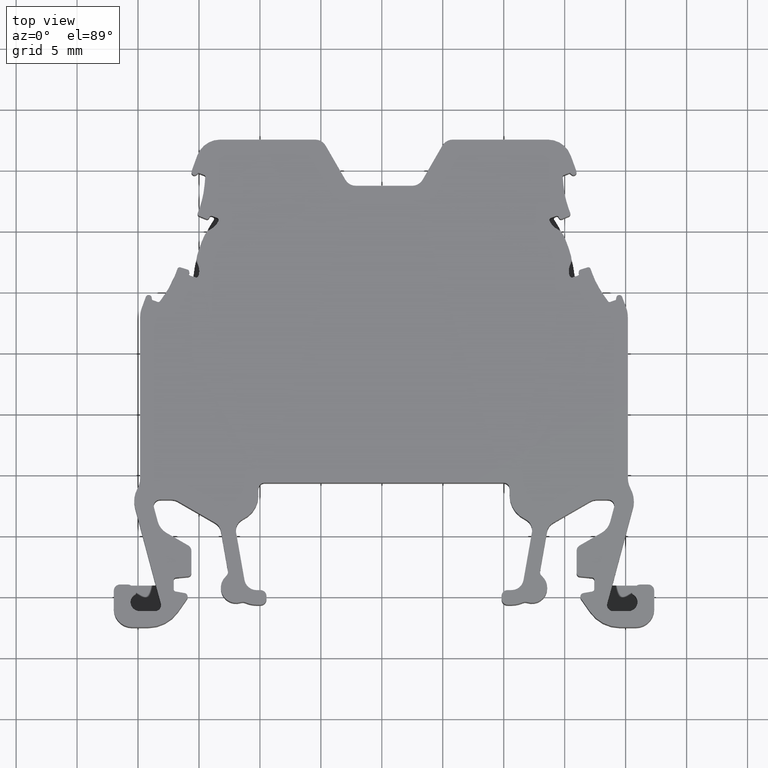
[diagram: clean part render]
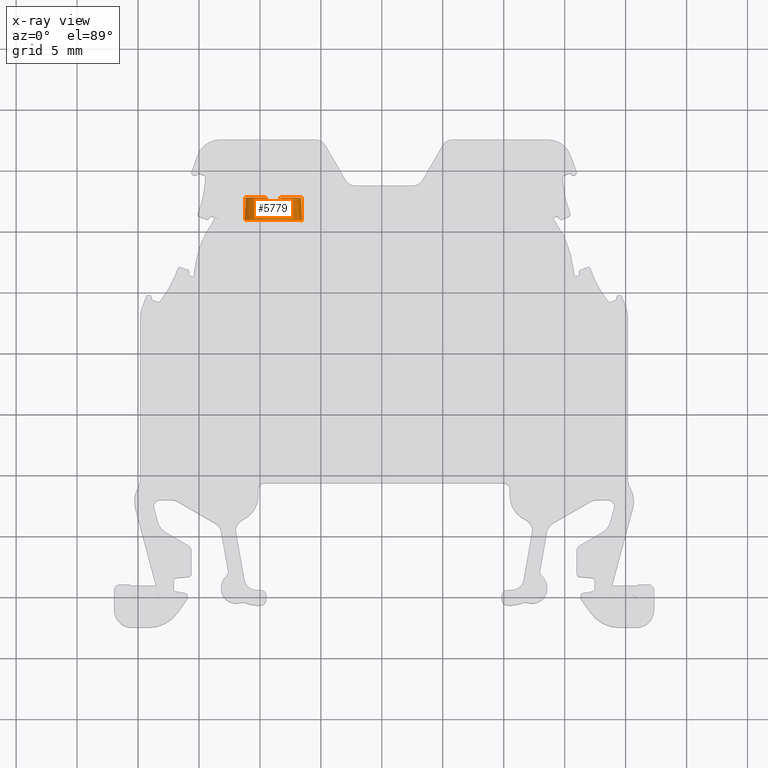
[diagram: x-ray — body ghosted, one internal face saturated and labeled with its STEP entity id]
A machine part, top view, then the same camera in x-ray: the body is ghosted and one INTERNAL B-rep face — a face not visible from any outside direction — is saturated and labeled: STEP entity #5779.
In plain terms, the highlighted conical surface has half-angle 2 deg.
Its self-contained STEP definition (entity closure, byte-faithful):
#1660 = VECTOR ( 'NONE', #5285, 1000.000000000000000 ) ;
#1661 = AXIS2_PLACEMENT_3D ( 'NONE', #4579, #4587, #4640 ) ;
#1670 = CIRCLE ( 'NONE', #1696, 2.283382567572767000 ) ;
#1673 = VECTOR ( 'NONE', #5113, 1000.000000000000000 ) ;
#1677 = CIRCLE ( 'NONE', #1661, 2.283382567572767000 ) ;
#1696 = AXIS2_PLACEMENT_3D ( 'NONE', #5088, #5079, #5049 ) ;
#1918 = AXIS2_PLACEMENT_3D ( 'NONE', #11092, #11072, #11088 ) ;
#1926 = CONICAL_SURFACE ( 'NONE', #1918, 2.348414834230760900, 0.03490658503991801700 ) ;
#2078 = B_SPLINE_CURVE_WITH_KNOTS ( 'NONE', 3,
 ( #5134, #5175, #5192, #5201 ),
 .UNSPECIFIED., .F., .F.,
 ( 4, 4 ),
 ( 0.0000000000000000000, 1.000000000000000000 ),
 .UNSPECIFIED. ) ;
#2080 = B_SPLINE_CURVE_WITH_KNOTS ( 'NONE', 3,
 ( #5286, #5265, #5273, #5233, #5268, #5272, #5269, #5276, #5266, #5259, #5237, #5274, #5262, #5257, #5252, #5267, #5275, #5255, #5250, #5277 ),
 .UNSPECIFIED., .F., .F.,
 ( 4, 1, 1, 1, 2, 2, 2, 1, 1, 1, 2, 2, 4 ),
 ( 0.0000000000000000000, 0.1250000000003731500, 0.1875000000005596900, 0.2187500000006529500, 0.2343750000006995200, 0.2500000000007461300, 0.5000000000006935600, 0.6250000000006673600, 0.6875000000006061800, 0.7187500000005756500, 0.7343750000005245800, 0.7500000000004735100, 1.000000000000000000 ),
 .UNSPECIFIED. ) ;
#2116 = B_SPLINE_CURVE_WITH_KNOTS ( 'NONE', 3,
 ( #9333, #9365, #9368, #9344 ),
 .UNSPECIFIED., .F., .F.,
 ( 4, 4 ),
 ( 0.0000000000000000000, 1.000000000000000000 ),
 .UNSPECIFIED. ) ;
#2147 = B_SPLINE_CURVE_WITH_KNOTS ( 'NONE', 3,
 ( #5634, #5642, #5643, #5604 ),
 .UNSPECIFIED., .F., .F.,
 ( 4, 4 ),
 ( 0.0000000000000000000, 1.000000000000000000 ),
 .UNSPECIFIED. ) ;
#2175 = B_SPLINE_CURVE_WITH_KNOTS ( 'NONE', 3,
 ( #5382, #5370, #5354, #5373, #5355, #5362, #5347, #5372, #5374, #5383, #5377, #5386, #5363, #5375, #5339, #5365, #5376, #5367, #5378, #5366 ),
 .UNSPECIFIED., .F., .F.,
 ( 4, 1, 1, 1, 2, 2, 2, 1, 1, 1, 2, 2, 4 ),
 ( 0.0000000000000000000, 0.1250000000001736100, 0.1875000000002603800, 0.2187500000003038100, 0.2343750000003558500, 0.2500000000004079000, 0.5000000000007981400, 0.6250000000009327000, 0.6875000000009999800, 0.7187500000011107800, 0.7343750000010875700, 0.7500000000010644800, 1.000000000000000000 ),
 .UNSPECIFIED. ) ;
#2190 = B_SPLINE_CURVE_WITH_KNOTS ( 'NONE', 3,
 ( #5520, #5542, #5515, #5517 ),
 .UNSPECIFIED., .F., .F.,
 ( 4, 4 ),
 ( 0.0000000000000000000, 1.000000000000000000 ),
 .UNSPECIFIED. ) ;
#3680 = ORIENTED_EDGE ( 'NONE', *, *, #6441, .T. ) ;
#3694 = ORIENTED_EDGE ( 'NONE', *, *, #6340, .T. ) ;
#3696 = ORIENTED_EDGE ( 'NONE', *, *, #6382, .F. ) ;
#3732 = ORIENTED_EDGE ( 'NONE', *, *, #6429, .T. ) ;
#3734 = ORIENTED_EDGE ( 'NONE', *, *, #6360, .T. ) ;
#3735 = ORIENTED_EDGE ( 'NONE', *, *, #6235, .T. ) ;
#3738 = ORIENTED_EDGE ( 'NONE', *, *, #6376, .T. ) ;
#3782 = ORIENTED_EDGE ( 'NONE', *, *, #6384, .F. ) ;
#3788 = ORIENTED_EDGE ( 'NONE', *, *, #6404, .F. ) ;
#3790 = ORIENTED_EDGE ( 'NONE', *, *, #6370, .T. ) ;
#4579 = CARTESIAN_POINT ( 'NONE',  ( 1451.103378640880000, 952.7469568751598700, 0.0000000000000000000 ) ) ;
#4587 = DIRECTION ( 'NONE',  ( -2.363771103056163500E-014, -1.000000000000000000, 0.0000000000000000000 ) ) ;
#4640 = DIRECTION ( 'NONE',  ( 1.000000000000000000, 0.0000000000000000000, 0.0000000000000000000 ) ) ;
#5024 = CARTESIAN_POINT ( 'NONE',  ( 1448.754963806649400, 950.8846764156262500, 2.875978709810863600E-016 ) ) ;
#5049 = DIRECTION ( 'NONE',  ( 1.000000000000000000, 0.0000000000000000000, 0.0000000000000000000 ) ) ;
#5070 = LINE ( 'NONE', #5024, #1673 ) ;
#5079 = DIRECTION ( 'NONE',  ( -2.363771103056163500E-014, -1.000000000000000000, 0.0000000000000000000 ) ) ;
#5088 = CARTESIAN_POINT ( 'NONE',  ( 1451.103378640880000, 952.7469568751598700, 0.0000000000000000000 ) ) ;
#5113 = DIRECTION ( 'NONE',  ( -0.03489949670257962800, -0.9993908270190929900, 4.273955692860989000E-018 ) ) ;
#5117 = LINE ( 'NONE', #5278, #1660 ) ;
#5134 = CARTESIAN_POINT ( 'NONE',  ( 1451.103378640880000, 951.8342832071922400, 2.315253834354456900 ) ) ;
#5175 = CARTESIAN_POINT ( 'NONE',  ( 1450.901069512176300, 951.8342832072335100, 2.315253834353207600 ) ) ;
#5192 = CARTESIAN_POINT ( 'NONE',  ( 1450.698776254143000, 951.8342832072335100, 2.288586072161315200 ) ) ;
#5201 = CARTESIAN_POINT ( 'NONE',  ( 1450.503378640880300, 951.8342832071897400, 2.236157489421518800 ) ) ;
#5233 = CARTESIAN_POINT ( 'NONE',  ( 1450.483967563870200, 950.8846764156270400, 2.267518399551567300 ) ) ;
#5237 = CARTESIAN_POINT ( 'NONE',  ( 1449.328359667386800, 950.8846764156272700, 1.546241177424305700 ) ) ;
#5250 = CARTESIAN_POINT ( 'NONE',  ( 1448.755157413459300, 950.8846764156271500, 0.2994956009054164900 ) ) ;
#5252 = CARTESIAN_POINT ( 'NONE',  ( 1448.950854296915600, 950.8846764156273800, 0.9392429537708882900 ) ) ;
#5255 = CARTESIAN_POINT ( 'NONE',  ( 1448.810119478566800, 950.8846764156273800, 0.5876419596838162700 ) ) ;
#5257 = CARTESIAN_POINT ( 'NONE',  ( 1448.975226458079300, 950.8846764156272700, 0.9945931723787427800 ) ) ;
#5259 = CARTESIAN_POINT ( 'NONE',  ( 1449.671676424888800, 950.8846764156269300, 1.889257808117193100 ) ) ;
#5262 = CARTESIAN_POINT ( 'NONE',  ( 1449.036570593943700, 950.8846764156271500, 1.120732924587791500 ) ) ;
#5265 = CARTESIAN_POINT ( 'NONE',  ( 1450.953895888460000, 950.8846764156271500, 2.348284623523447600 ) ) ;
#5266 = CARTESIAN_POINT ( 'NONE',  ( 1449.938018970699200, 950.8846764156268100, 2.064535381624629900 ) ) ;
#5267 = CARTESIAN_POINT ( 'NONE',  ( 1448.935032452312700, 950.8846764156270400, 0.9020560691870315200 ) ) ;
#5268 = CARTESIAN_POINT ( 'NONE',  ( 1450.360861892154600, 950.8846764156272700, 2.228515015369529500 ) ) ;
#5269 = CARTESIAN_POINT ( 'NONE',  ( 1450.273647728417900, 950.8846764156269300, 2.197022924212926200 ) ) ;
#5272 = CARTESIAN_POINT ( 'NONE',  ( 1450.308482679165800, 950.8846764156272700, 2.209876174630384800 ) ) ;
#5273 = CARTESIAN_POINT ( 'NONE',  ( 1450.733728939602800, 950.8846764156269300, 2.327576191078450500 ) ) ;
#5274 = CARTESIAN_POINT ( 'NONE',  ( 1449.177161904937700, 950.8846764156269300, 1.360969397502788800 ) ) ;
#5275 = CARTESIAN_POINT ( 'NONE',  ( 1448.926708159681500, 950.8846764156269300, 0.8817388961259133900 ) ) ;
#5276 = CARTESIAN_POINT ( 'NONE',  ( 1450.257747101653600, 950.8846764156271500, 2.190965717488663000 ) ) ;
#5277 = CARTESIAN_POINT ( 'NONE',  ( 1448.754963806649800, 950.8846764156378400, 1.433421229859897800E-016 ) ) ;
#5278 = CARTESIAN_POINT ( 'NONE',  ( 1453.451793475110700, 950.8846764156260200, 0.0000000000000000000 ) ) ;
#5285 = DIRECTION ( 'NONE',  ( 0.03489949670248513500, -0.9993908270190963200, 0.0000000000000000000 ) ) ;
#5286 = CARTESIAN_POINT ( 'NONE',  ( 1451.103378640880000, 950.8846764156406800, 2.348414834229821200 ) ) ;
#5339 = CARTESIAN_POINT ( 'NONE',  ( 1452.042621577941200, 950.8846764156273800, 2.152524349219004000 ) ) ;
#5347 = CARTESIAN_POINT ( 'NONE',  ( 1453.300426033858500, 950.8846764156271500, 0.8296690438414263700 ) ) ;
#5354 = CARTESIAN_POINT ( 'NONE',  ( 1453.431131638514700, 950.8846764156268100, 0.3692026506247691500 ) ) ;
#5355 = CARTESIAN_POINT ( 'NONE',  ( 1453.331971009119300, 950.8846764156272700, 0.7423211640626987700 ) ) ;
#5362 = CARTESIAN_POINT ( 'NONE',  ( 1453.313301385095400, 950.8846764156270400, 0.7947782117628720000 ) ) ;
#5363 = CARTESIAN_POINT ( 'NONE',  ( 1452.224111517888800, 950.8846764156271500, 2.066808061897198900 ) ) ;
#5365 = CARTESIAN_POINT ( 'NONE',  ( 1452.005434701287000, 950.8846764156267000, 2.168346191328387000 ) ) ;
#5366 = CARTESIAN_POINT ( 'NONE',  ( 1451.103378640880000, 950.8846764156406800, 2.348414834229821200 ) ) ;
#5367 = CARTESIAN_POINT ( 'NONE',  ( 1451.691190149494100, 950.8846764156271500, 2.293191953571414500 ) ) ;
#5370 = CARTESIAN_POINT ( 'NONE',  ( 1453.451764296722300, 950.8846764156271500, 0.1492272949043248800 ) ) ;
#5372 = CARTESIAN_POINT ( 'NONE',  ( 1453.294344364124500, 950.8846764156270400, 0.8456315303392829600 ) ) ;
#5373 = CARTESIAN_POINT ( 'NONE',  ( 1453.371029645349200, 950.8846764156270400, 0.6190757890188787200 ) ) ;
#5374 = CARTESIAN_POINT ( 'NONE',  ( 1453.167913930430800, 950.8846764156269300, 1.165359812310742500 ) ) ;
#5375 = CARTESIAN_POINT ( 'NONE',  ( 1452.097971785504600, 950.8846764156269300, 2.128152191528276800 ) ) ;
#5376 = CARTESIAN_POINT ( 'NONE',  ( 1451.985106940197500, 950.8846764156271500, 2.176674681744899900 ) ) ;
#5377 = CARTESIAN_POINT ( 'NONE',  ( 1452.649619782054500, 950.8846764156272700, 1.775018984892156900 ) ) ;
#5378 = CARTESIAN_POINT ( 'NONE',  ( 1451.403043790715400, 950.8846764156270400, 2.348154018677650200 ) ) ;
#5382 = CARTESIAN_POINT ( 'NONE',  ( 1453.451793475110200, 950.8846764156491000, -2.300782967848990600E-016 ) ) ;
#5383 = CARTESIAN_POINT ( 'NONE',  ( 1452.992636521498800, 950.8846764156269300, 1.431702193194004600 ) ) ;
#5386 = CARTESIAN_POINT ( 'NONE',  ( 1452.464347974945200, 950.8846764156271500, 1.926216755889826900 ) ) ;
#5515 = CARTESIAN_POINT ( 'NONE',  ( 1451.703418479764700, 952.1385077631771300, 2.225147265713771200 ) ) ;
#5517 = CARTESIAN_POINT ( 'NONE',  ( 1451.703378640879700, 951.8342832071784900, 2.236157489422031300 ) ) ;
#5520 = CARTESIAN_POINT ( 'NONE',  ( 1451.703378640879900, 952.7469568751708900, 2.203142289980455400 ) ) ;
#5542 = CARTESIAN_POINT ( 'NONE',  ( 1451.703418466789600, 952.4427323191754300, 2.214142125483318200 ) ) ;
#5604 = CARTESIAN_POINT ( 'NONE',  ( 1451.103378640880000, 951.8342832071922400, 2.315253834354456900 ) ) ;
#5634 = CARTESIAN_POINT ( 'NONE',  ( 1451.703378640879700, 951.8342832071784900, 2.236157489422031300 ) ) ;
#5642 = CARTESIAN_POINT ( 'NONE',  ( 1451.507981027617200, 951.8342832071766700, 2.288586072163294000 ) ) ;
#5643 = CARTESIAN_POINT ( 'NONE',  ( 1451.305687769584000, 951.8342832071766700, 2.315253834355199400 ) ) ;
#5779 = ADVANCED_FACE ( 'NONE', ( #11078 ), #1926, .T. ) ;
#6235 = EDGE_CURVE ( 'NONE', #10766, #10753, #2116, .T. ) ;
#6340 = EDGE_CURVE ( 'NONE', #10753, #10746, #1677, .T. ) ;
#6360 = EDGE_CURVE ( 'NONE', #10784, #10810, #1670, .T. ) ;
#6370 = EDGE_CURVE ( 'NONE', #10746, #10809, #5070, .T. ) ;
#6376 = EDGE_CURVE ( 'NONE', #10807, #10766, #2078, .T. ) ;
#6382 = EDGE_CURVE ( 'NONE', #10784, #10765, #5117, .T. ) ;
#6384 = EDGE_CURVE ( 'NONE', #10737, #10809, #2080, .T. ) ;
#6404 = EDGE_CURVE ( 'NONE', #10765, #10737, #2175, .T. ) ;
#6429 = EDGE_CURVE ( 'NONE', #10810, #10794, #2190, .T. ) ;
#6441 = EDGE_CURVE ( 'NONE', #10794, #10807, #2147, .T. ) ;
#7333 = CARTESIAN_POINT ( 'NONE',  ( 1451.103378640880000, 950.8846764156406800, 2.348414834229821200 ) ) ;
#7356 = CARTESIAN_POINT ( 'NONE',  ( 1448.819996073305700, 952.7469568751598700, 2.796337152608780700E-016 ) ) ;
#7662 = CARTESIAN_POINT ( 'NONE',  ( 1450.503378640880100, 952.7469568751708900, 2.203142289980462900 ) ) ;
#8516 = CARTESIAN_POINT ( 'NONE',  ( 1451.103378640880000, 951.8342832071922400, 2.315253834354456900 ) ) ;
#8518 = CARTESIAN_POINT ( 'NONE',  ( 1451.703378640879900, 952.7469568751708900, 2.203142289980455400 ) ) ;
#8539 = CARTESIAN_POINT ( 'NONE',  ( 1448.754963806649800, 950.8846764156378400, 1.433421229859897800E-016 ) ) ;
#8542 = CARTESIAN_POINT ( 'NONE',  ( 1453.451793475110200, 950.8846764156491000, -2.300782967848990600E-016 ) ) ;
#8544 = CARTESIAN_POINT ( 'NONE',  ( 1450.503378640880300, 951.8342832071897400, 2.236157489421518800 ) ) ;
#8554 = CARTESIAN_POINT ( 'NONE',  ( 1453.386761208453700, 952.7469568751598700, 2.211772431870429000E-014 ) ) ;
#8569 = CARTESIAN_POINT ( 'NONE',  ( 1451.703378640879700, 951.8342832071784900, 2.236157489422031300 ) ) ;
#9333 = CARTESIAN_POINT ( 'NONE',  ( 1450.503378640880300, 951.8342832071897400, 2.236157489421518800 ) ) ;
#9344 = CARTESIAN_POINT ( 'NONE',  ( 1450.503378640880100, 952.7469568751708900, 2.203142289980462900 ) ) ;
#9365 = CARTESIAN_POINT ( 'NONE',  ( 1450.503338801995400, 952.1385077631771300, 2.225147265713740100 ) ) ;
#9368 = CARTESIAN_POINT ( 'NONE',  ( 1450.503338814970400, 952.4427323191754300, 2.214142125483280000 ) ) ;
#10737 = VERTEX_POINT ( 'NONE', #7333 ) ;
#10746 = VERTEX_POINT ( 'NONE', #7356 ) ;
#10753 = VERTEX_POINT ( 'NONE', #7662 ) ;
#10765 = VERTEX_POINT ( 'NONE', #8542 ) ;
#10766 = VERTEX_POINT ( 'NONE', #8544 ) ;
#10784 = VERTEX_POINT ( 'NONE', #8554 ) ;
#10794 = VERTEX_POINT ( 'NONE', #8569 ) ;
#10807 = VERTEX_POINT ( 'NONE', #8516 ) ;
#10809 = VERTEX_POINT ( 'NONE', #8539 ) ;
#10810 = VERTEX_POINT ( 'NONE', #8518 ) ;
#11072 = DIRECTION ( 'NONE',  ( -4.727542206097576000E-014, -1.000000000000000000, 0.0000000000000000000 ) ) ;
#11078 = FACE_OUTER_BOUND ( 'NONE', #11336, .T. ) ;
#11088 = DIRECTION ( 'NONE',  ( 1.000000000000000000, -4.727542206097576000E-014, 0.0000000000000000000 ) ) ;
#11092 = CARTESIAN_POINT ( 'NONE',  ( 1451.103378640880000, 950.8846764156261300, 0.0000000000000000000 ) ) ;
#11336 = EDGE_LOOP ( 'NONE', ( #3694, #3790, #3782, #3788, #3696, #3734, #3732, #3680, #3738, #3735 ) ) ;